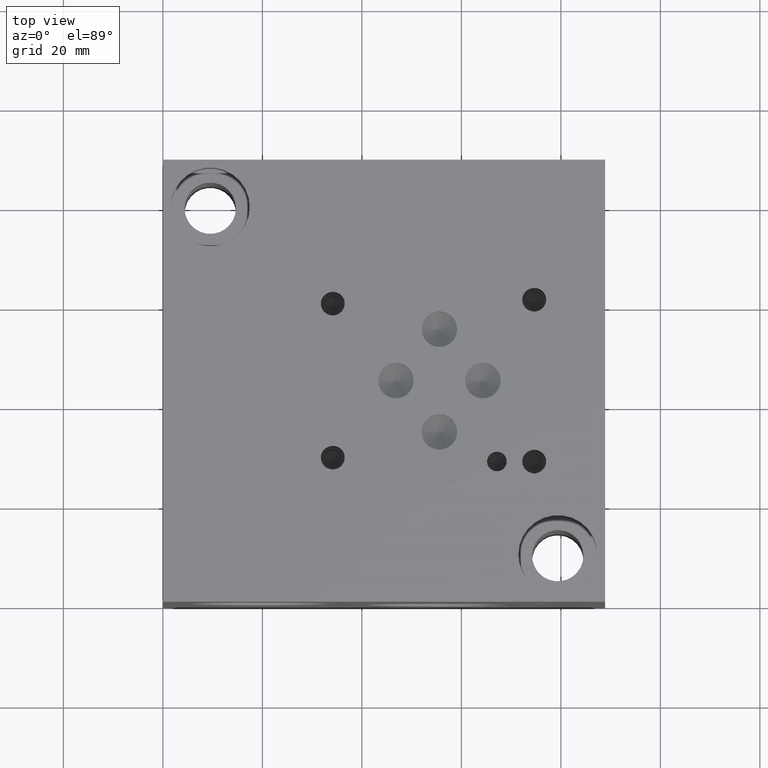
[diagram: clean part render]
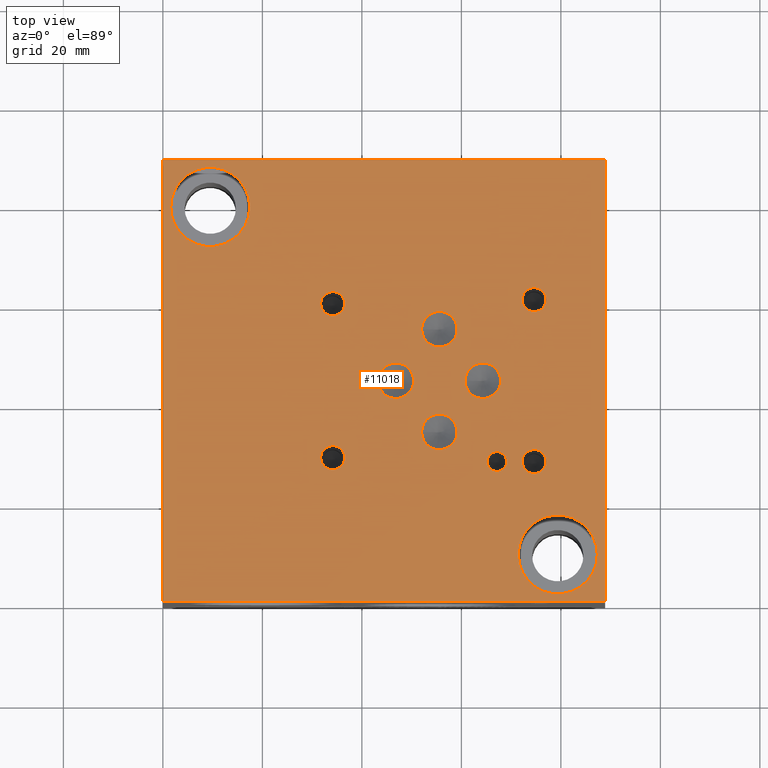
[diagram: same view with one face highlighted and labeled with its STEP entity id]
A machine part, top view. The second image highlights one B-rep face of the part: STEP entity #11018.
In plain terms, the highlighted planar face has unit normal (0, 0, 1).
Its self-contained STEP definition (entity closure, byte-faithful):
#247=CIRCLE('',#11545,3.5687);
#248=CIRCLE('',#11546,3.5687);
#251=CIRCLE('',#11551,3.5687);
#252=CIRCLE('',#11552,3.5687);
#255=CIRCLE('',#11557,3.5687);
#256=CIRCLE('',#11558,3.5687);
#259=CIRCLE('',#11563,3.5687);
#260=CIRCLE('',#11564,3.5687);
#263=CIRCLE('',#11569,1.9812);
#264=CIRCLE('',#11570,1.9812);
#270=CIRCLE('',#11579,2.413);
#271=CIRCLE('',#11580,2.413);
#277=CIRCLE('',#11590,2.413);
#278=CIRCLE('',#11591,2.413);
#284=CIRCLE('',#11601,2.413);
#285=CIRCLE('',#11602,2.413);
#291=CIRCLE('',#11612,2.413);
#292=CIRCLE('',#11613,2.413);
#296=CIRCLE('',#11620,7.9375);
#297=CIRCLE('',#11621,7.9375);
#301=CIRCLE('',#11628,7.9375);
#302=CIRCLE('',#11629,7.9375);
#372=FACE_BOUND('',#1893,.T.);
#373=FACE_BOUND('',#1894,.T.);
#374=FACE_BOUND('',#1895,.T.);
#375=FACE_BOUND('',#1896,.T.);
#376=FACE_BOUND('',#1897,.T.);
#377=FACE_BOUND('',#1898,.T.);
#378=FACE_BOUND('',#1899,.T.);
#379=FACE_BOUND('',#1900,.T.);
#380=FACE_BOUND('',#1901,.T.);
#381=FACE_BOUND('',#1902,.T.);
#382=FACE_BOUND('',#1903,.T.);
#695=PLANE('',#11635);
#1259=FACE_OUTER_BOUND('',#1892,.T.);
#1892=EDGE_LOOP('',(#9830,#9831,#9832,#9833));
#1893=EDGE_LOOP('',(#9834,#9835));
#1894=EDGE_LOOP('',(#9836,#9837));
#1895=EDGE_LOOP('',(#9838,#9839));
#1896=EDGE_LOOP('',(#9840,#9841));
#1897=EDGE_LOOP('',(#9842,#9843));
#1898=EDGE_LOOP('',(#9844,#9845));
#1899=EDGE_LOOP('',(#9846,#9847));
#1900=EDGE_LOOP('',(#9848,#9849));
#1901=EDGE_LOOP('',(#9850,#9851));
#1902=EDGE_LOOP('',(#9852,#9853));
#1903=EDGE_LOOP('',(#9854,#9855));
#2010=LINE('',#14452,#3014);
#2078=LINE('',#14736,#3082);
#2907=LINE('',#19111,#3911);
#2908=LINE('',#19114,#3912);
#3014=VECTOR('',#11818,10.);
#3082=VECTOR('',#11942,10.);
#3911=VECTOR('',#13837,10.);
#3912=VECTOR('',#13842,10.);
#4345=VERTEX_POINT('',#14449);
#4346=VERTEX_POINT('',#14451);
#4405=VERTEX_POINT('',#14733);
#4406=VERTEX_POINT('',#14735);
#5215=VERTEX_POINT('',#18935);
#5216=VERTEX_POINT('',#18936);
#5220=VERTEX_POINT('',#18948);
#5221=VERTEX_POINT('',#18949);
#5225=VERTEX_POINT('',#18961);
#5226=VERTEX_POINT('',#18962);
#5230=VERTEX_POINT('',#18974);
#5231=VERTEX_POINT('',#18975);
#5235=VERTEX_POINT('',#18987);
#5236=VERTEX_POINT('',#18988);
#5243=VERTEX_POINT('',#19007);
#5244=VERTEX_POINT('',#19008);
#5251=VERTEX_POINT('',#19029);
#5252=VERTEX_POINT('',#19030);
#5259=VERTEX_POINT('',#19051);
#5260=VERTEX_POINT('',#19052);
#5267=VERTEX_POINT('',#19073);
#5268=VERTEX_POINT('',#19074);
#5272=VERTEX_POINT('',#19088);
#5273=VERTEX_POINT('',#19089);
#5277=VERTEX_POINT('',#19103);
#5278=VERTEX_POINT('',#19104);
#5434=EDGE_CURVE('',#4346,#4345,#2010,.T.);
#5522=EDGE_CURVE('',#4406,#4405,#2078,.T.);
#6724=EDGE_CURVE('',#5215,#5216,#247,.T.);
#6725=EDGE_CURVE('',#5216,#5215,#248,.T.);
#6730=EDGE_CURVE('',#5220,#5221,#251,.T.);
#6731=EDGE_CURVE('',#5221,#5220,#252,.T.);
#6736=EDGE_CURVE('',#5225,#5226,#255,.T.);
#6737=EDGE_CURVE('',#5226,#5225,#256,.T.);
#6742=EDGE_CURVE('',#5230,#5231,#259,.T.);
#6743=EDGE_CURVE('',#5231,#5230,#260,.T.);
#6748=EDGE_CURVE('',#5235,#5236,#263,.T.);
#6749=EDGE_CURVE('',#5236,#5235,#264,.T.);
#6757=EDGE_CURVE('',#5243,#5244,#270,.T.);
#6758=EDGE_CURVE('',#5244,#5243,#271,.T.);
#6767=EDGE_CURVE('',#5251,#5252,#277,.T.);
#6768=EDGE_CURVE('',#5252,#5251,#278,.T.);
#6777=EDGE_CURVE('',#5259,#5260,#284,.T.);
#6778=EDGE_CURVE('',#5260,#5259,#285,.T.);
#6787=EDGE_CURVE('',#5267,#5268,#291,.T.);
#6788=EDGE_CURVE('',#5268,#5267,#292,.T.);
#6794=EDGE_CURVE('',#5272,#5273,#296,.T.);
#6795=EDGE_CURVE('',#5273,#5272,#297,.T.);
#6801=EDGE_CURVE('',#5277,#5278,#301,.T.);
#6802=EDGE_CURVE('',#5278,#5277,#302,.T.);
#6805=EDGE_CURVE('',#4345,#4406,#2907,.T.);
#6806=EDGE_CURVE('',#4405,#4346,#2908,.T.);
#9830=ORIENTED_EDGE('',*,*,#5522,.T.);
#9831=ORIENTED_EDGE('',*,*,#6806,.T.);
#9832=ORIENTED_EDGE('',*,*,#5434,.T.);
#9833=ORIENTED_EDGE('',*,*,#6805,.T.);
#9834=ORIENTED_EDGE('',*,*,#6724,.T.);
#9835=ORIENTED_EDGE('',*,*,#6725,.T.);
#9836=ORIENTED_EDGE('',*,*,#6730,.T.);
#9837=ORIENTED_EDGE('',*,*,#6731,.T.);
#9838=ORIENTED_EDGE('',*,*,#6736,.T.);
#9839=ORIENTED_EDGE('',*,*,#6737,.T.);
#9840=ORIENTED_EDGE('',*,*,#6742,.T.);
#9841=ORIENTED_EDGE('',*,*,#6743,.T.);
#9842=ORIENTED_EDGE('',*,*,#6748,.T.);
#9843=ORIENTED_EDGE('',*,*,#6749,.T.);
#9844=ORIENTED_EDGE('',*,*,#6757,.T.);
#9845=ORIENTED_EDGE('',*,*,#6758,.T.);
#9846=ORIENTED_EDGE('',*,*,#6767,.T.);
#9847=ORIENTED_EDGE('',*,*,#6768,.T.);
#9848=ORIENTED_EDGE('',*,*,#6777,.T.);
#9849=ORIENTED_EDGE('',*,*,#6778,.T.);
#9850=ORIENTED_EDGE('',*,*,#6787,.T.);
#9851=ORIENTED_EDGE('',*,*,#6788,.T.);
#9852=ORIENTED_EDGE('',*,*,#6794,.T.);
#9853=ORIENTED_EDGE('',*,*,#6795,.T.);
#9854=ORIENTED_EDGE('',*,*,#6801,.T.);
#9855=ORIENTED_EDGE('',*,*,#6802,.T.);
#11018=ADVANCED_FACE('',(#1259,#372,#373,#374,#375,#376,#377,#378,#379,
#380,#381,#382),#695,.T.);
#11545=AXIS2_PLACEMENT_3D('',#18937,#13638,#13639);
#11546=AXIS2_PLACEMENT_3D('',#18938,#13640,#13641);
#11551=AXIS2_PLACEMENT_3D('',#18950,#13652,#13653);
#11552=AXIS2_PLACEMENT_3D('',#18951,#13654,#13655);
#11557=AXIS2_PLACEMENT_3D('',#18963,#13666,#13667);
#11558=AXIS2_PLACEMENT_3D('',#18964,#13668,#13669);
#11563=AXIS2_PLACEMENT_3D('',#18976,#13680,#13681);
#11564=AXIS2_PLACEMENT_3D('',#18977,#13682,#13683);
#11569=AXIS2_PLACEMENT_3D('',#18989,#13694,#13695);
#11570=AXIS2_PLACEMENT_3D('',#18990,#13696,#13697);
#11579=AXIS2_PLACEMENT_3D('',#19009,#13716,#13717);
#11580=AXIS2_PLACEMENT_3D('',#19010,#13718,#13719);
#11590=AXIS2_PLACEMENT_3D('',#19031,#13741,#13742);
#11591=AXIS2_PLACEMENT_3D('',#19032,#13743,#13744);
#11601=AXIS2_PLACEMENT_3D('',#19053,#13766,#13767);
#11602=AXIS2_PLACEMENT_3D('',#19054,#13768,#13769);
#11612=AXIS2_PLACEMENT_3D('',#19075,#13791,#13792);
#11613=AXIS2_PLACEMENT_3D('',#19076,#13793,#13794);
#11620=AXIS2_PLACEMENT_3D('',#19090,#13809,#13810);
#11621=AXIS2_PLACEMENT_3D('',#19091,#13811,#13812);
#11628=AXIS2_PLACEMENT_3D('',#19105,#13827,#13828);
#11629=AXIS2_PLACEMENT_3D('',#19106,#13829,#13830);
#11635=AXIS2_PLACEMENT_3D('',#19116,#13845,#13846);
#11818=DIRECTION('',(-1.,0.,0.));
#11942=DIRECTION('',(1.,0.,0.));
#13638=DIRECTION('center_axis',(0.,0.,-1.));
#13639=DIRECTION('ref_axis',(1.,0.,0.));
#13640=DIRECTION('center_axis',(0.,0.,-1.));
#13641=DIRECTION('ref_axis',(1.,0.,0.));
#13652=DIRECTION('center_axis',(0.,0.,-1.));
#13653=DIRECTION('ref_axis',(1.,0.,0.));
#13654=DIRECTION('center_axis',(0.,0.,-1.));
#13655=DIRECTION('ref_axis',(1.,0.,0.));
#13666=DIRECTION('center_axis',(0.,0.,-1.));
#13667=DIRECTION('ref_axis',(1.,0.,0.));
#13668=DIRECTION('center_axis',(0.,0.,-1.));
#13669=DIRECTION('ref_axis',(1.,0.,0.));
#13680=DIRECTION('center_axis',(0.,0.,-1.));
#13681=DIRECTION('ref_axis',(1.,0.,0.));
#13682=DIRECTION('center_axis',(0.,0.,-1.));
#13683=DIRECTION('ref_axis',(1.,0.,0.));
#13694=DIRECTION('center_axis',(0.,0.,-1.));
#13695=DIRECTION('ref_axis',(1.,0.,0.));
#13696=DIRECTION('center_axis',(0.,0.,-1.));
#13697=DIRECTION('ref_axis',(1.,0.,0.));
#13716=DIRECTION('center_axis',(0.,0.,-1.));
#13717=DIRECTION('ref_axis',(1.,0.,0.));
#13718=DIRECTION('center_axis',(0.,0.,-1.));
#13719=DIRECTION('ref_axis',(1.,0.,0.));
#13741=DIRECTION('center_axis',(0.,0.,-1.));
#13742=DIRECTION('ref_axis',(1.,0.,0.));
#13743=DIRECTION('center_axis',(0.,0.,-1.));
#13744=DIRECTION('ref_axis',(1.,0.,0.));
#13766=DIRECTION('center_axis',(0.,0.,-1.));
#13767=DIRECTION('ref_axis',(1.,0.,0.));
#13768=DIRECTION('center_axis',(0.,0.,-1.));
#13769=DIRECTION('ref_axis',(1.,0.,0.));
#13791=DIRECTION('center_axis',(0.,0.,-1.));
#13792=DIRECTION('ref_axis',(1.,0.,0.));
#13793=DIRECTION('center_axis',(0.,0.,-1.));
#13794=DIRECTION('ref_axis',(1.,0.,0.));
#13809=DIRECTION('center_axis',(0.,0.,-1.));
#13810=DIRECTION('ref_axis',(1.,0.,0.));
#13811=DIRECTION('center_axis',(0.,0.,-1.));
#13812=DIRECTION('ref_axis',(1.,0.,0.));
#13827=DIRECTION('center_axis',(0.,0.,-1.));
#13828=DIRECTION('ref_axis',(1.,0.,0.));
#13829=DIRECTION('center_axis',(0.,0.,-1.));
#13830=DIRECTION('ref_axis',(1.,0.,0.));
#13837=DIRECTION('',(0.,-1.,0.));
#13842=DIRECTION('',(0.,1.,0.));
#13845=DIRECTION('center_axis',(0.,0.,1.));
#13846=DIRECTION('ref_axis',(1.,0.,0.));
#14449=CARTESIAN_POINT('',(0.,88.9,76.2));
#14451=CARTESIAN_POINT('',(88.9,88.9,76.2));
#14452=CARTESIAN_POINT('',(88.9,88.9,76.2));
#14733=CARTESIAN_POINT('',(88.9,0.,76.2));
#14735=CARTESIAN_POINT('',(0.,0.,76.2));
#14736=CARTESIAN_POINT('',(0.,0.,76.2));
#18935=CARTESIAN_POINT('',(50.4063,44.45,76.2));
#18936=CARTESIAN_POINT('',(43.2689,44.45,76.2));
#18937=CARTESIAN_POINT('Origin',(46.8376,44.45,76.2));
#18938=CARTESIAN_POINT('Origin',(46.8376,44.45,76.2));
#18948=CARTESIAN_POINT('',(59.1439,34.1376,76.2));
#18949=CARTESIAN_POINT('',(52.0065,34.1376,76.2));
#18950=CARTESIAN_POINT('Origin',(55.5752,34.1376,76.2));
#18951=CARTESIAN_POINT('Origin',(55.5752,34.1376,76.2));
#18961=CARTESIAN_POINT('',(59.1439,54.7878,76.2));
#18962=CARTESIAN_POINT('',(52.0065,54.7878,76.2));
#18963=CARTESIAN_POINT('Origin',(55.5752,54.7878,76.2));
#18964=CARTESIAN_POINT('Origin',(55.5752,54.7878,76.2));
#18974=CARTESIAN_POINT('',(67.8815,44.45,76.2));
#18975=CARTESIAN_POINT('',(60.7441,44.45,76.2));
#18976=CARTESIAN_POINT('Origin',(64.3128,44.45,76.2));
#18977=CARTESIAN_POINT('Origin',(64.3128,44.45,76.2));
#18987=CARTESIAN_POINT('',(69.1134,28.194,76.2));
#18988=CARTESIAN_POINT('',(65.151,28.194,76.2));
#18989=CARTESIAN_POINT('Origin',(67.1322,28.194,76.2));
#18990=CARTESIAN_POINT('Origin',(67.1322,28.194,76.2));
#19007=CARTESIAN_POINT('',(77.0382,60.7314,76.2));
#19008=CARTESIAN_POINT('',(72.2122,60.7314,76.2));
#19009=CARTESIAN_POINT('Origin',(74.6252,60.7314,76.2));
#19010=CARTESIAN_POINT('Origin',(74.6252,60.7314,76.2));
#19029=CARTESIAN_POINT('',(36.5506,28.9814,76.2));
#19030=CARTESIAN_POINT('',(31.7246,28.9814,76.2));
#19031=CARTESIAN_POINT('Origin',(34.1376,28.9814,76.2));
#19032=CARTESIAN_POINT('Origin',(34.1376,28.9814,76.2));
#19051=CARTESIAN_POINT('',(36.5506,59.944,76.2));
#19052=CARTESIAN_POINT('',(31.7246,59.944,76.2));
#19053=CARTESIAN_POINT('Origin',(34.1376,59.944,76.2));
#19054=CARTESIAN_POINT('Origin',(34.1376,59.944,76.2));
#19073=CARTESIAN_POINT('',(77.0382,28.194,76.2));
#19074=CARTESIAN_POINT('',(72.2122,28.194,76.2));
#19075=CARTESIAN_POINT('Origin',(74.6252,28.194,76.2));
#19076=CARTESIAN_POINT('Origin',(74.6252,28.194,76.2));
#19088=CARTESIAN_POINT('',(87.3125,9.525,76.2));
#19089=CARTESIAN_POINT('',(71.4375,9.525,76.2));
#19090=CARTESIAN_POINT('Origin',(79.375,9.525,76.2));
#19091=CARTESIAN_POINT('Origin',(79.375,9.525,76.2));
#19103=CARTESIAN_POINT('',(17.4625,79.375,76.2));
#19104=CARTESIAN_POINT('',(1.5875,79.375,76.2));
#19105=CARTESIAN_POINT('Origin',(9.525,79.375,76.2));
#19106=CARTESIAN_POINT('Origin',(9.525,79.375,76.2));
#19111=CARTESIAN_POINT('',(0.,88.9,76.2));
#19114=CARTESIAN_POINT('',(88.9,0.,76.2));
#19116=CARTESIAN_POINT('Origin',(44.45,44.45,76.2));